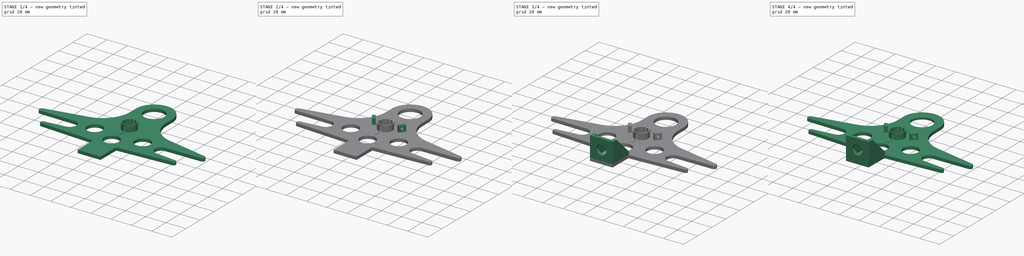
[diagram: build sequence overview — one tinted view per stage of 4, left to right]
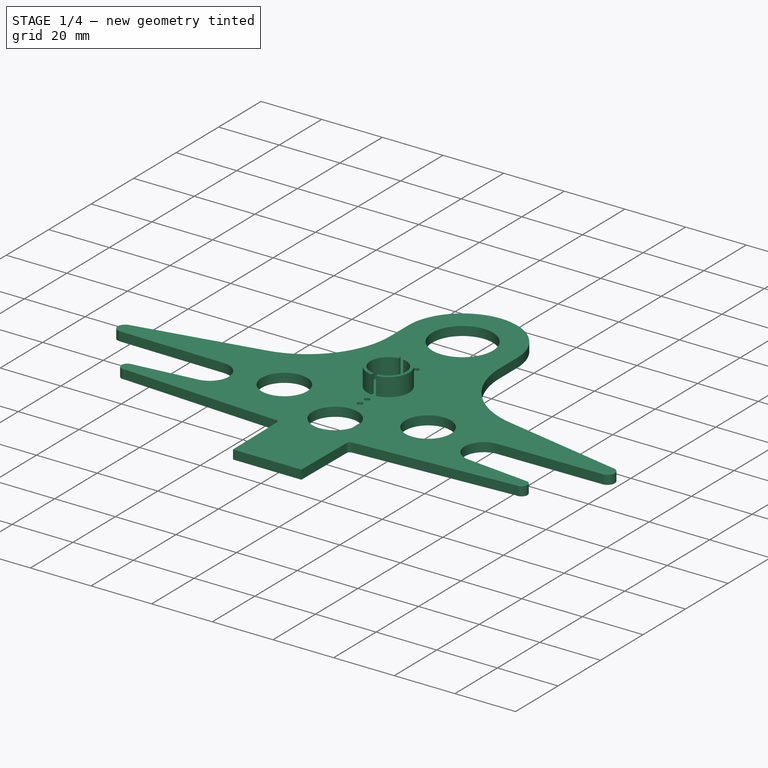
[diagram: stage 1 of 4 — iso view after this stage's code; geometry added in this stage tinted green]
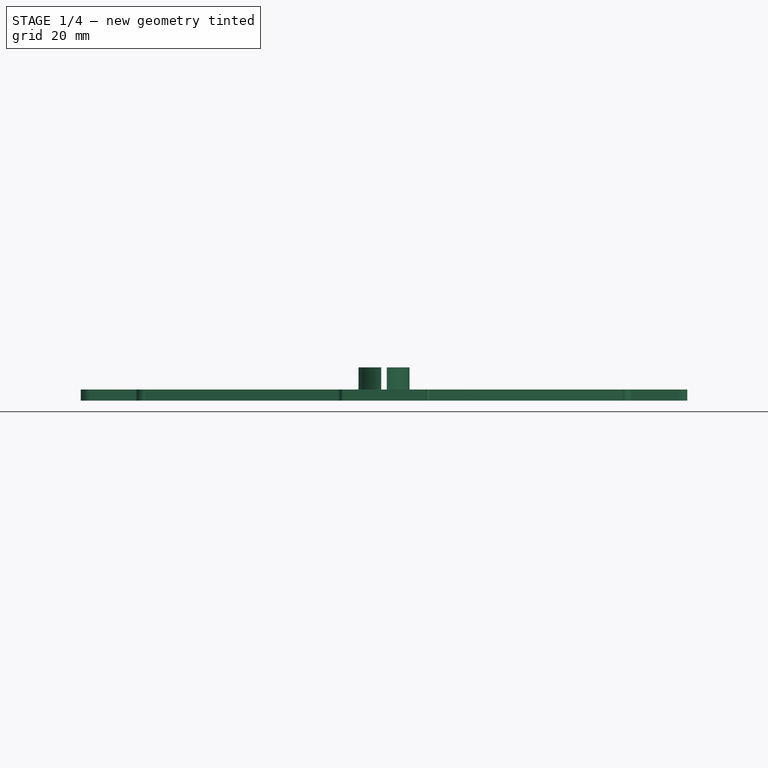
[diagram: stage 1 of 4 — front view after this stage's code; geometry added in this stage tinted green]
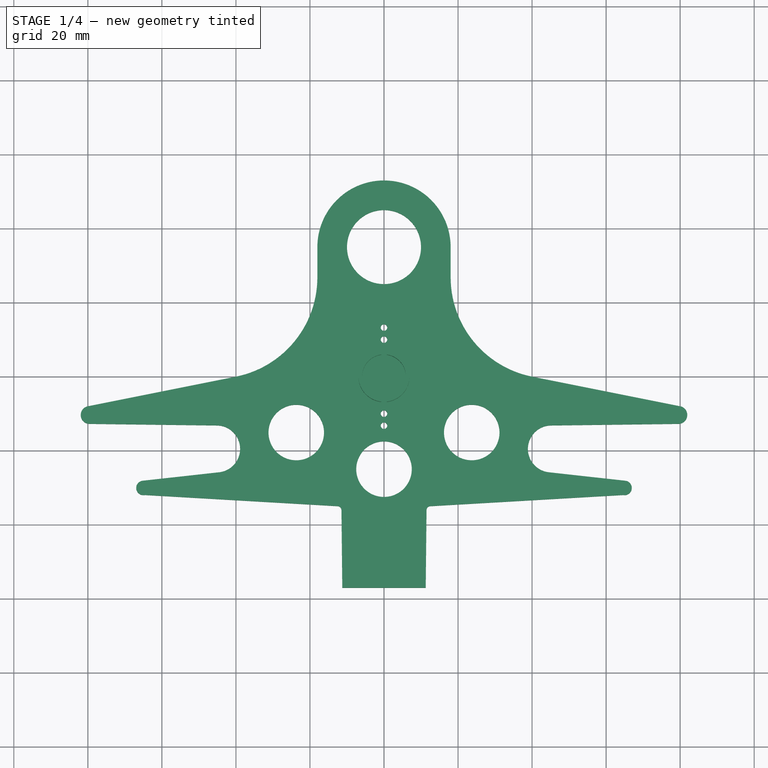
[diagram: stage 1 of 4 — top view after this stage's code; geometry added in this stage tinted green]
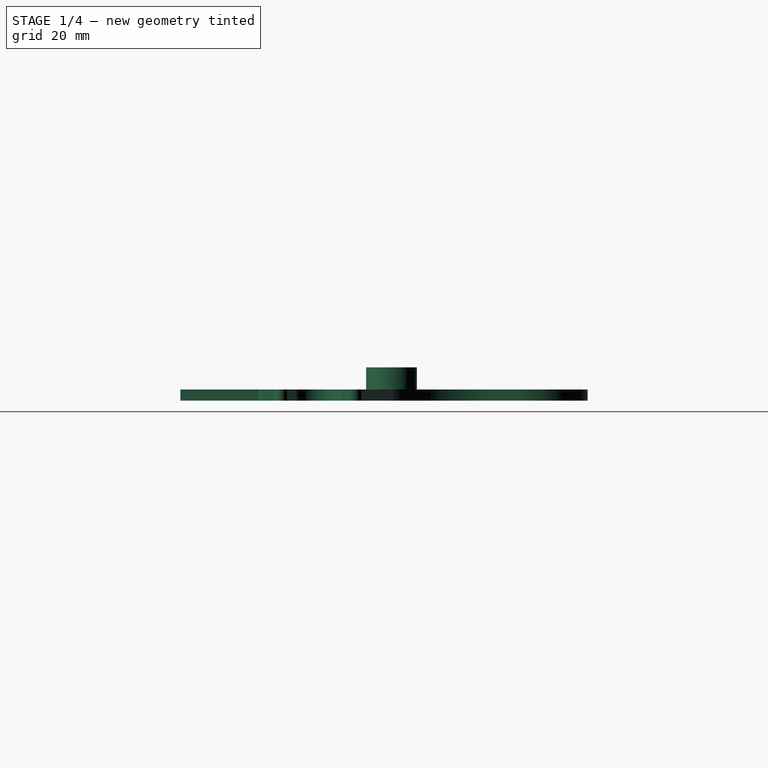
[diagram: stage 1 of 4 — right view after this stage's code; geometry added in this stage tinted green]
FCSTD DOCUMENT  (FreeCAD 1.0R39109 (Git))
Label: PortoAntenna
License: All rights reserved
LicenseURL: http://en.wikipedia.org/wiki/All_rights_reserved
objects: Sketcher::SketchObject×10, PartDesign::Pocket×6, PartDesign::Pad×4, PartDesign::Fillet×3, PartDesign::Chamfer×1, PartDesign::Body×1, App::Part×1
note: 63 computed .brp shape members not serialized (recipe doc carries the construction recipe); baked Part::Feature solids carry a one-line shape summary decoded from their .brp

FEATURE [Sketcher::SketchObject] Sketch001
  ArcFitTolerance = 0
  FullyConstrained = false
  MakeInternals = false
  sketch-geometry (32):
    g0: ArcOfCircle CenterX=0 CenterY=35 CenterZ=0 NormalX=0 NormalY=0 NormalZ=1 AngleXU=0 Radius=10 StartAngle=1.5708 EndAngle=4.71239
    g1: ArcOfCircle CenterX=0 CenterY=35 CenterZ=0 NormalX=0 NormalY=0 NormalZ=1 AngleXU=0 Radius=18 StartAngle=1.5708 EndAngle=3.14159
    g2: LineSegment StartX=-18 StartY=35 StartZ=0 EndX=-18 EndY=26.8357 EndZ=0
    g3: ArcOfCircle CenterX=-45.3671 CenterY=26.8357 CenterZ=0 NormalX=0 NormalY=0 NormalZ=1 AngleXU=0 Radius=27.3671 StartAngle=4.90978 EndAngle=6.28319
    g4: LineSegment StartX=-40 StartY=0 StartZ=0 EndX=-80 EndY=-8 EndZ=0
    g5: ArcOfCircle CenterX=-79.5303 CenterY=-10.3485 CenterZ=0 NormalX=0 NormalY=0 NormalZ=1 AngleXU=0 Radius=2.395 StartAngle=1.76819 EndAngle=4.6999
    g6: LineSegment StartX=-79.5602 StartY=-12.7433 StartZ=0 EndX=-45.1402 EndY=-13.1733 EndZ=0
    g7: ArcOfCircle CenterX=-45.2195 CenterY=-19.5228 CenterZ=0 NormalX=0 NormalY=0 NormalZ=1 AngleXU=0 Radius=6.35 StartAngle=4.81995 EndAngle=7.84149
    g8: LineSegment StartX=-44.5378 StartY=-25.8361 StartZ=0 EndX=-65.1978 EndY=-28.1261 EndZ=0
    g9: ArcOfCircle CenterX=-64.983 CenterY=-30.0642 CenterZ=0 NormalX=0 NormalY=0 NormalZ=1 AngleXU=0 Radius=1.95 StartAngle=1.68119 EndAngle=4.92581
    g10: LineSegment StartX=-64.57 StartY=-31.97 StartZ=0 EndX=-12.5 EndY=-34.99 EndZ=0
    g11: ArcOfCircle CenterX=-12.5621 CenterY=-36.0603 CenterZ=0 NormalX=0 NormalY=0 NormalZ=1 AngleXU=0 Radius=1.07214 StartAngle=0.0104803 EndAngle=1.51286
    g12: LineSegment StartX=-11.49 StartY=-36.0491 StartZ=0 EndX=-11.27 EndY=-57.04 EndZ=0
    g13: LineSegment StartX=-11.27 StartY=-57.04 StartZ=0 EndX=0 EndY=-57.04 EndZ=0
    g14: ArcOfCircle CenterX=0 CenterY=-25 CenterZ=0 NormalX=0 NormalY=0 NormalZ=1 AngleXU=0 Radius=7.5 StartAngle=1.5708 EndAngle=4.71239
    g15: Circle CenterX=-23.7 CenterY=-15.1 CenterZ=0 NormalX=0 NormalY=0 NormalZ=1 AngleXU=0 Radius=7.5
    g16: ArcOfCircle CenterX=0 CenterY=35 CenterZ=0 NormalX=0 NormalY=0 NormalZ=1 AngleXU=0 Radius=10 StartAngle=4.71239 EndAngle=7.85398
    g17: ArcOfCircle CenterX=0 CenterY=35 CenterZ=0 NormalX=0 NormalY=0 NormalZ=1 AngleXU=0 Radius=18 StartAngle=0 EndAngle=1.5708
    g18: LineSegment StartX=18 StartY=35 StartZ=0 EndX=18 EndY=26.8357 EndZ=0
    g19: ArcOfCircle CenterX=45.3671 CenterY=26.8357 CenterZ=0 NormalX=0 NormalY=0 NormalZ=1 AngleXU=0 Radius=27.3671 StartAngle=3.14159 EndAngle=4.51499
    g20: LineSegment StartX=40 StartY=3.6e-15 StartZ=0 EndX=80 EndY=-8 EndZ=0
    g21: ArcOfCircle CenterX=79.5303 CenterY=-10.3485 CenterZ=0 NormalX=0 NormalY=0 NormalZ=1 AngleXU=0 Radius=2.395 StartAngle=4.72488 EndAngle=7.65659
    g22: LineSegment StartX=79.5602 StartY=-12.7433 StartZ=0 EndX=45.1402 EndY=-13.1733 EndZ=0
    g23: ArcOfCircle CenterX=45.2195 CenterY=-19.5228 CenterZ=0 NormalX=0 NormalY=0 NormalZ=1 AngleXU=0 Radius=6.35 StartAngle=1.58329 EndAngle=4.60483
    g24: LineSegment StartX=44.5378 StartY=-25.8361 StartZ=0 EndX=65.1978 EndY=-28.1261 EndZ=0
    g25: ArcOfCircle CenterX=64.983 CenterY=-30.0642 CenterZ=0 NormalX=0 NormalY=0 NormalZ=1 AngleXU=0 Radius=1.95 StartAngle=4.49897 EndAngle=7.74359
    g26: LineSegment StartX=64.57 StartY=-31.97 StartZ=0 EndX=12.5 EndY=-34.99 EndZ=0
    g27: ArcOfCircle CenterX=12.5621 CenterY=-36.0603 CenterZ=0 NormalX=0 NormalY=0 NormalZ=1 AngleXU=0 Radius=1.07214 StartAngle=1.62873 EndAngle=3.13111
    g28: LineSegment StartX=11.49 StartY=-36.0491 StartZ=0 EndX=11.27 EndY=-57.04 EndZ=0
    g29: LineSegment StartX=11.27 StartY=-57.04 StartZ=0 EndX=0 EndY=-57.04 EndZ=0
    g30: ArcOfCircle CenterX=0 CenterY=-25 CenterZ=0 NormalX=0 NormalY=0 NormalZ=1 AngleXU=0 Radius=7.5 StartAngle=4.71239 EndAngle=7.85398
    g31: Circle CenterX=23.7 CenterY=-15.1 CenterZ=0 NormalX=0 NormalY=0 NormalZ=1 AngleXU=0 Radius=7.5
  constraints (71):
    c: PointOnObject(g0,g-2)
    c: PointOnObject(g0,g-2)
    c: PointOnObject(g0,g-2)
    c: Diameter(g0) = 20
    c: Coincident(g1,g0)
    c: PointOnObject(g1,g-2)
    c: Diameter(g1) = 36
    c: DistanceY(g-1,g0) = 35
    c: DistanceY(g-1,g1) = 35
    c: Tangent(g1,g2) = -1.5708
    c: Tangent(g2,g3) = 1.5708
    c: PointOnObject(g3,g-1)
    c: Tangent(g3,g4) = 1.5708
    c: DistanceX(g3,g-1) = 40
    c: DistanceX(g4,g-1) = 80
    c: DistanceY(g4,g-1) = 8
    c: Tangent(g4,g5) = -1.5708
    c: Tangent(g5,g6) = -1.5708
    c: Tangent(g6,g7) = 1.5708
    c: Coincident(g7,g8)
    c: Tangent(g8,g9) = -1.5708
    c: Coincident(g9,g10)
    c: DistanceX(g10,g-1) = 12.5
    c: Diameter(g5) = 4.79
    c: Diameter(g9) = 3.9
    c: DistanceX(g6,g6) = 34.42
    c: DistanceX(g10,g10) = 52.07
    c: DistanceY(g10,g10) = 3.02
    c: DistanceY(g6,g6) = 0.43
    c: DistanceY(g10,g-1) = 34.99
    c: Tangent(g10,g11) = 1.5708
    c: Tangent(g11,g12) = 1.5708
    c: Coincident(g12,g13)
    c: PointOnObject(g13,g-2)
    c: Horizontal(g13)
    c: DistanceX(g13,g13) = 11.27
    c: DistanceX(g12,g12) = 0.22
    c: DistanceY(g13,g-1) = 57.04
    c: Diameter(g7) = 12.7
    c: DistanceX(g8,g8) = 20.66
    c: DistanceY(g8,g8) = 2.29
    c: PointOnObject(g14,g-2)
    c: PointOnObject(g14,g-2)
    c: PointOnObject(g14,g-2)
    c: Diameter(g14) = 15
    c: Diameter(g15) = 15
    c: DistanceX(g15,g-1) = 23.7
    c: DistanceY(g14,g-1) = 25
    c: DistanceY(g15,g-1) = 15.1
    c: Diameter(g16) = 20
    c: Coincident(g17,g16)
    c: Diameter(g17) = 36
    c: Tangent(g17,g18) = 1.5708
    c: Tangent(g18,g19) = -1.5708
    c: Tangent(g19,g20) = -1.5708
    c: Tangent(g20,g21) = 1.5708
    c: Tangent(g21,g22) = 1.5708
    c: Tangent(g22,g23) = -1.5708
    c: Coincident(g23,g24)
    c: Tangent(g24,g25) = 1.5708
    c: Coincident(g25,g26)
    c: Diameter(g21) = 4.79
    c: Diameter(g25) = 3.9
    c: Tangent(g26,g27) = -1.5708
    c: Tangent(g27,g28) = -1.5708
    c: Coincident(g28,g29)
    c: Horizontal(g29)
    c: Diameter(g23) = 12.7
    c: Diameter(g30) = 15
    c: Diameter(g31) = 15
    c: Coincident(g14,g30)
FEATURE [PartDesign::Pad] Pad  label="PortoBodyPad"
  Direction = (0,0,1)
  Length = 3
  Length2 = 10
  Profile = -> Sketch001
  ReferenceAxis = -> Sketch001 [N_Axis]
  Suppressed = false
  Type = 0
FEATURE [Sketcher::SketchObject] Sketch
  ArcFitTolerance = 0
  AttachmentSupport = -> [Pad]
  FullyConstrained = true
  MakeInternals = false
  MapMode = 5
  Placement = pos=(0,0,3) rot=(0,0,1;0rad)
  sketch-geometry (2):
    g0: Circle CenterX=0 CenterY=0 CenterZ=0 NormalX=0 NormalY=0 NormalZ=1 AngleXU=0 Radius=5.9
    g1: Circle CenterX=0 CenterY=0 CenterZ=0 NormalX=0 NormalY=0 NormalZ=1 AngleXU=0 Radius=6.9
  constraints (4):
    c: Coincident(g0,g-1)
    c: Diameter(g0) = 11.8
    c: Coincident(g1,g0)
    c: Diameter(g1) = 13.8
FEATURE [PartDesign::Pad] Pad001  label="ToroidPad"
  BaseFeature = -> Pad
  Direction = (0,0,1)
  Length = 6
  Length2 = 10
  Profile = -> Sketch
  ReferenceAxis = -> Sketch [N_Axis]
  Suppressed = false
  Type = 0
FEATURE [Sketcher::SketchObject] Sketch002
  ArcFitTolerance = 0
  AttachmentSupport = -> [Pad001]
  FullyConstrained = false
  MakeInternals = false
  MapMode = 5
  Placement = pos=(0,0,9) rot=(0,0,1;0rad)
  sketch-geometry (4):
    g0: LineSegment StartX=-0.75 StartY=7.98442 StartZ=0 EndX=0.75 EndY=7.98442 EndZ=0
    g1: LineSegment StartX=0.75 StartY=7.98442 StartZ=0 EndX=0.75 EndY=-7.98442 EndZ=0
    g2: LineSegment StartX=0.75 StartY=-7.98442 StartZ=0 EndX=-0.75 EndY=-7.98442 EndZ=0
    g3: LineSegment StartX=-0.75 StartY=-7.98442 StartZ=0 EndX=-0.75 EndY=7.98442 EndZ=0
  constraints (10):
    c: Coincident(g0,g1)
    c: Coincident(g1,g2)
    c: Coincident(g2,g3)
    c: Coincident(g3,g0)
    c: Horizontal(g0)
    c: Horizontal(g2)
    c: Vertical(g1)
    c: Vertical(g3)
    c: DistanceX(g0,g0) = 1.5
    c: Symmetric(g0,g1,g-1)
FEATURE [PartDesign::Pocket] Pocket  label="ToroidPocket"
  BaseFeature = -> Pad001
  Direction = (0,0,-1)
  Length = 6
  Length2 = 5
  Profile = -> Sketch002
  ReferenceAxis = -> Sketch002 [N_Axis]
  Suppressed = false
  Type = 0
FEATURE [Sketcher::SketchObject] Sketch003
  ArcFitTolerance = 0
  AttachmentSupport = -> [Pocket]
  FullyConstrained = true
  MakeInternals = false
  MapMode = 5
  Placement = pos=(0,0,3) rot=(0,0,1;0rad)
  sketch-geometry (4):
    g0: Circle CenterX=0 CenterY=10 CenterZ=0 NormalX=0 NormalY=0 NormalZ=1 AngleXU=0 Radius=0.875
    g1: Circle CenterX=0 CenterY=13.25 CenterZ=0 NormalX=0 NormalY=0 NormalZ=1 AngleXU=0 Radius=0.875
    g2: Circle CenterX=0 CenterY=-10 CenterZ=0 NormalX=0 NormalY=0 NormalZ=1 AngleXU=0 Radius=0.875
    g3: Circle CenterX=0 CenterY=-13.25 CenterZ=0 NormalX=0 NormalY=0 NormalZ=1 AngleXU=0 Radius=0.875
  constraints (12):
    c: PointOnObject(g0,g-2)
    c: PointOnObject(g1,g-2)
    c: PointOnObject(g2,g-2)
    c: PointOnObject(g3,g-2)
    c: Equal(g0,g1)
    c: Equal(g0,g2)
    c: Equal(g0,g3)
    c: Diameter(g0) = 1.75
    c: DistanceY(g0,g1) = 3.25
    c: DistanceY(g3,g2) = 3.25
    c: DistanceY(g-1,g0) = 10
    c: DistanceY(g2,g-1) = 10
FEATURE [PartDesign::Pocket] Pocket001  label="ToroidWireHoles"
  BaseFeature = -> Pocket
  Direction = (0,0,-1)
  Length = 3
  Length2 = 5
  Profile = -> Sketch003
  ReferenceAxis = -> Sketch003 [N_Axis]
  Suppressed = false
  Type = 0
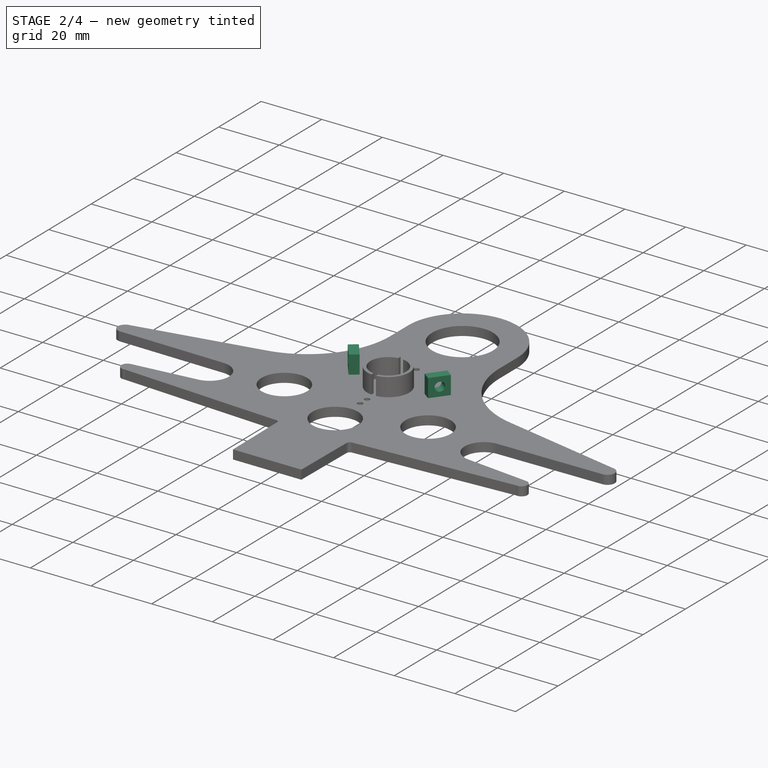
[diagram: stage 2 of 4 — iso view after this stage's code; geometry added in this stage tinted green]
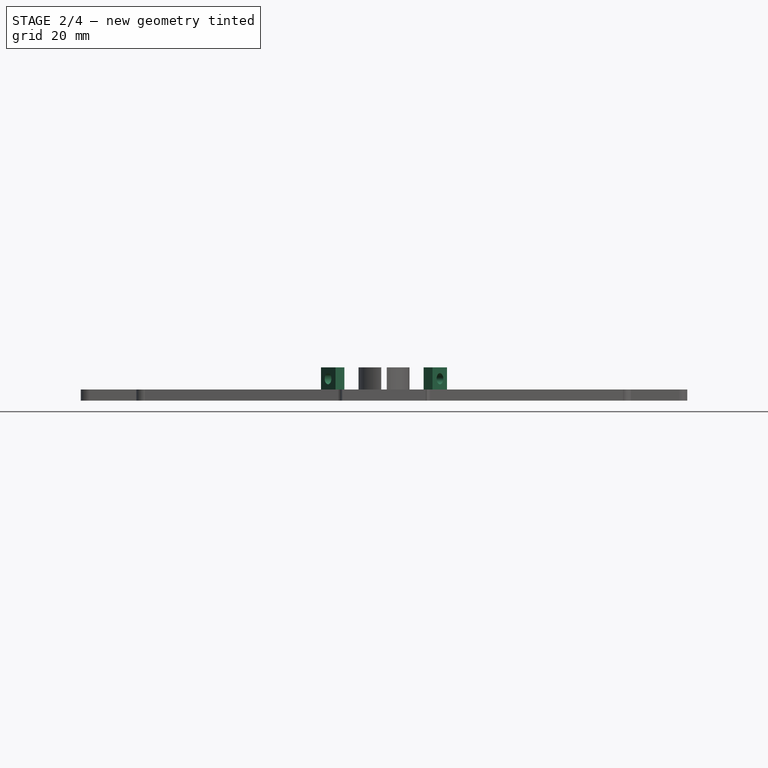
[diagram: stage 2 of 4 — front view after this stage's code; geometry added in this stage tinted green]
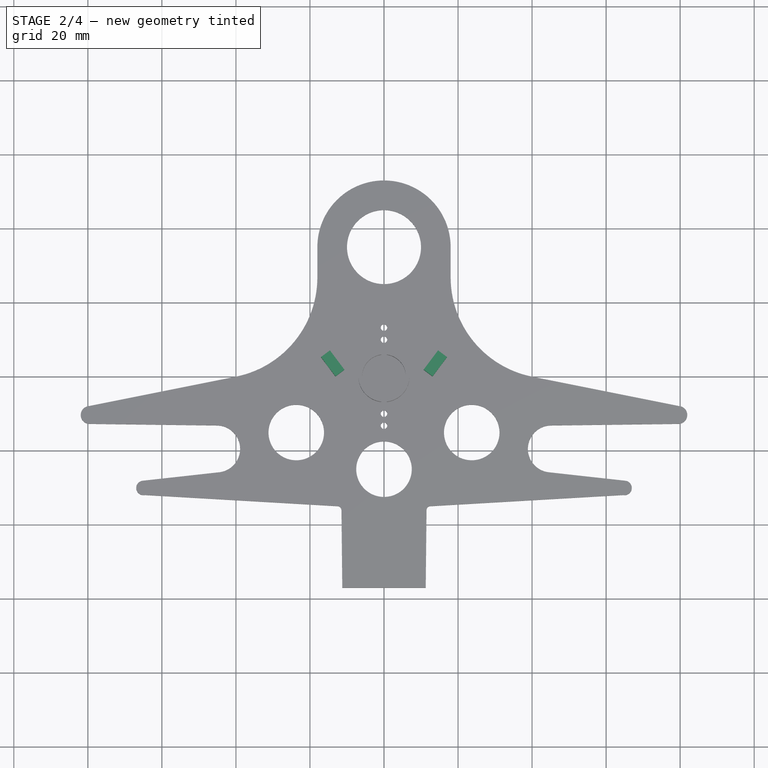
[diagram: stage 2 of 4 — top view after this stage's code; geometry added in this stage tinted green]
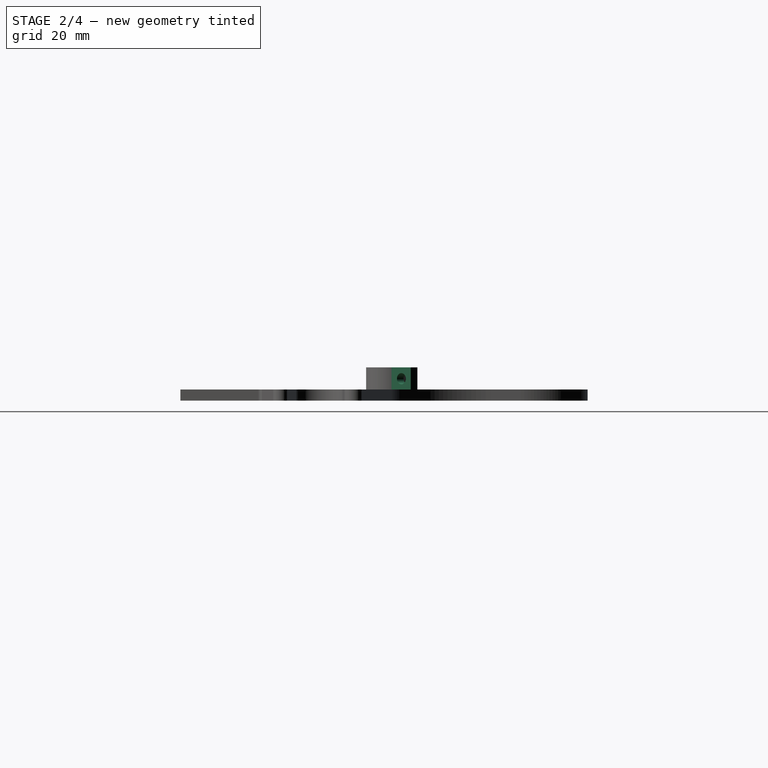
[diagram: stage 2 of 4 — right view after this stage's code; geometry added in this stage tinted green]
FEATURE [Sketcher::SketchObject] Sketch005
  ArcFitTolerance = 0
  FullyConstrained = true
  MakeInternals = false
  Placement = pos=(0,0,3) rot=(0,0,1;0rad)
  sketch-geometry (8):
    g0: LineSegment StartX=-13.11 StartY=0 StartZ=0 EndX=-17.01 EndY=5.2 EndZ=0
    g1: LineSegment StartX=-17.01 StartY=5.2 StartZ=0 EndX=-14.61 EndY=7 EndZ=0
    g2: LineSegment StartX=-14.61 StartY=7 StartZ=0 EndX=-10.71 EndY=1.8 EndZ=0
    g3: LineSegment StartX=-10.71 StartY=1.8 StartZ=0 EndX=-13.11 EndY=2e-16 EndZ=0
    g4: LineSegment StartX=13.11 StartY=-4e-16 StartZ=0 EndX=17.01 EndY=5.2 EndZ=0
    g5: LineSegment StartX=17.01 StartY=5.2 StartZ=0 EndX=14.61 EndY=7 EndZ=0
    g6: LineSegment StartX=14.61 StartY=7 StartZ=0 EndX=10.71 EndY=1.8 EndZ=0
    g7: LineSegment StartX=10.71 StartY=1.8 StartZ=0 EndX=13.11 EndY=-4e-16 EndZ=0
  constraints (20):
    c: PointOnObject(g0,g-1)
    c: Perpendicular(g0,g1) = 4.71239
    c: Perpendicular(g1,g2) = 4.71239
    c: Coincident(g2,g3)
    c: Coincident(g3,g0)
    c: Distance(g0) = 6.5
    c: Distance(g1) = 3
    c: Distance(g2) = 6.5
    c: DistanceX(g0,g-1) = 13.11
    c: DistanceY(g-1,g2) = 1.8
    c: Perpendicular(g4,g5) = 1.5708
    c: Perpendicular(g5,g6) = 1.5708
    c: Coincident(g6,g7)
    c: Coincident(g7,g4)
    c: Distance(g4) = 6.5
    c: Distance(g5) = 3
    c: Distance(g6) = 6.5
    c: DistanceX(g-1,g4) = 13.11
    c: DistanceY(g-1,g6) = 1.8
    c: DistanceX(g-1,g5) = 14.61
FEATURE [PartDesign::Pad] Pad002
  BaseFeature = -> Pocket001
  Direction = (0,0,1)
  Length = 6
  Length2 = 10
  Profile = -> Sketch005
  ReferenceAxis = -> Sketch005 [N_Axis]
  Suppressed = false
  Type = 0
FEATURE [Sketcher::SketchObject] Sketch006
  ArcFitTolerance = 0
  AttachmentSupport = -> [Pad002]
  FullyConstrained = true
  MakeInternals = false
  MapMode = 5
  Placement = pos=(8.3904,-6.2928,0) rot=(0.816497,0.408248,0.408248;1.77215rad)
  sketch-geometry (1):
    g0: Circle CenterX=11.21 CenterY=5.93 CenterZ=0 NormalX=0 NormalY=0 NormalZ=1 AngleXU=0 Radius=1.5
  constraints (3):
    c: Diameter(g0) = 3
    c: DistanceX(g-1,g0) = 11.21
    c: DistanceY(g-1,g0) = 5.93
FEATURE [PartDesign::Pocket] Pocket002
  BaseFeature = -> Pad002
  Direction = (-0.8,0.6,0)
  Length = 5
  Length2 = 5
  Profile = -> Sketch006
  ReferenceAxis = -> Sketch006 [N_Axis]
  Suppressed = false
  Type = 0
FEATURE [Sketcher::SketchObject] Sketch007
  ArcFitTolerance = 0
  AttachmentSupport = -> [Pocket002]
  FullyConstrained = true
  MakeInternals = false
  MapMode = 5
  Placement = pos=(-8.3904,-6.2928,0) rot=(0.816497,-0.408248,-0.408248;1.77215rad)
  sketch-geometry (1):
    g0: Circle CenterX=-11.21 CenterY=5.93 CenterZ=0 NormalX=0 NormalY=0 NormalZ=1 AngleXU=0 Radius=1.5
  constraints (3):
    c: Diameter(g0) = 3
    c: DistanceX(g0,g-1) = 11.21
    c: DistanceY(g-1,g0) = 5.93
FEATURE [PartDesign::Pocket] Pocket003
  BaseFeature = -> Pocket002
  Direction = (0.8,0.6,-1e-16)
  Length = 5
  Length2 = 5
  Profile = -> Sketch007
  ReferenceAxis = -> Sketch007 [N_Axis]
  Suppressed = false
  Type = 0
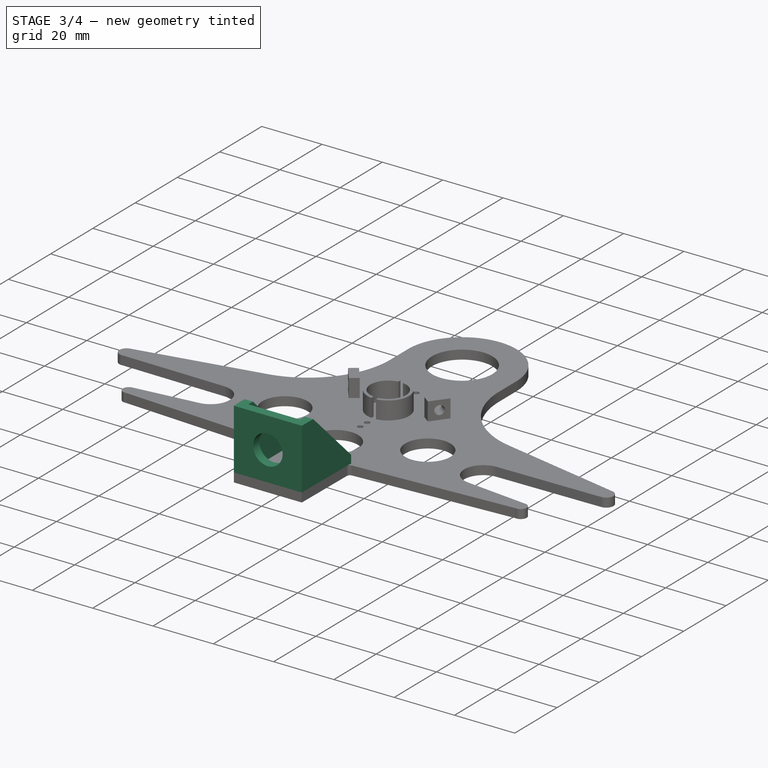
[diagram: stage 3 of 4 — iso view after this stage's code; geometry added in this stage tinted green]
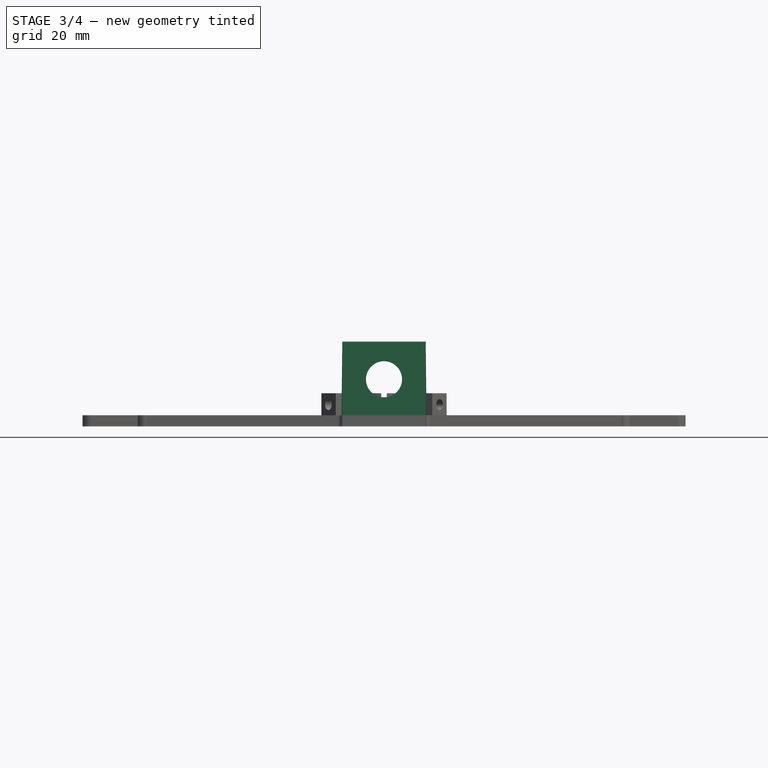
[diagram: stage 3 of 4 — front view after this stage's code; geometry added in this stage tinted green]
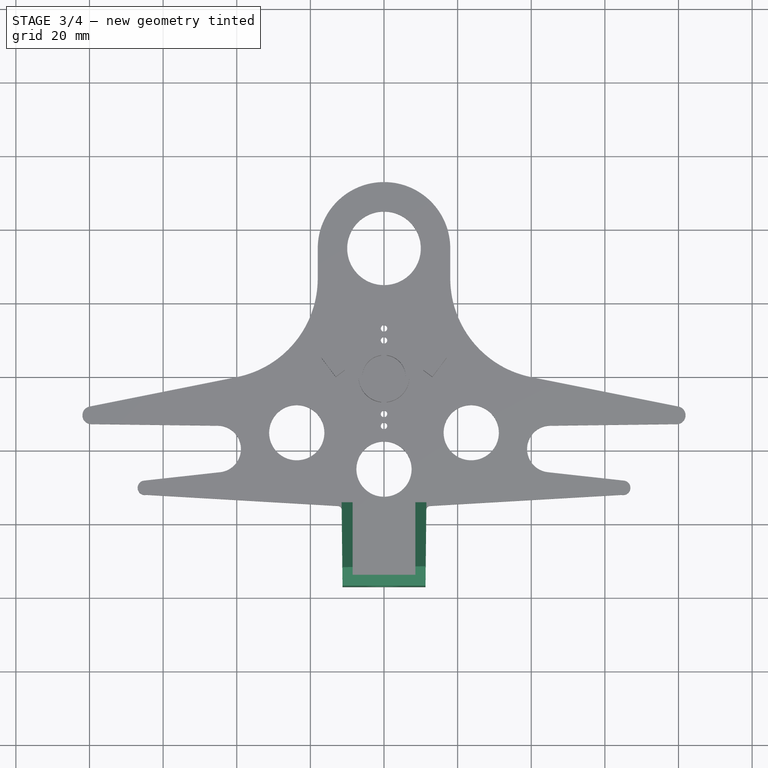
[diagram: stage 3 of 4 — top view after this stage's code; geometry added in this stage tinted green]
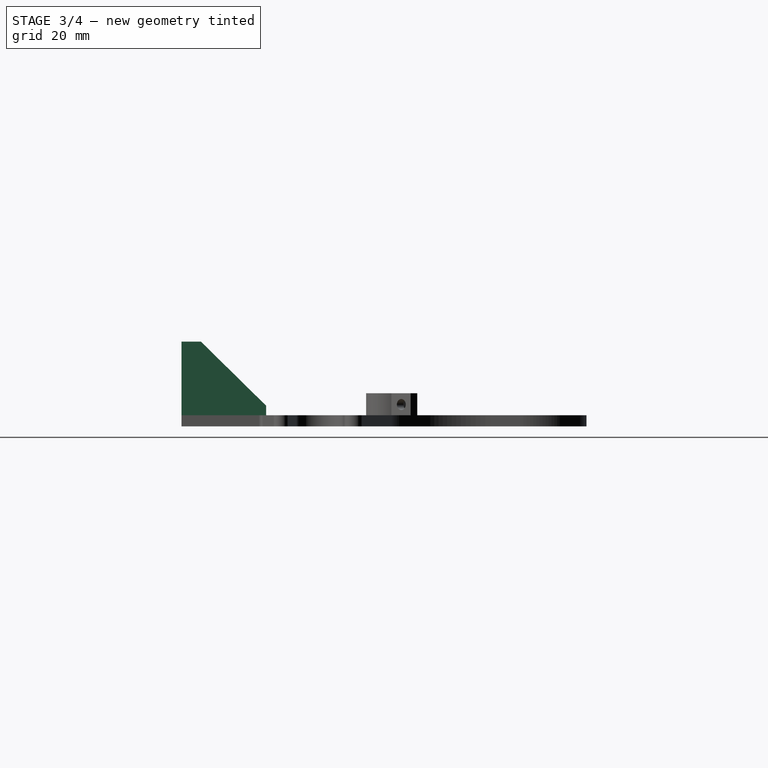
[diagram: stage 3 of 4 — right view after this stage's code; geometry added in this stage tinted green]
FEATURE [Sketcher::SketchObject] Sketch008
  ArcFitTolerance = 0
  AttachmentSupport = -> [Pocket003]
  FullyConstrained = true
  MakeInternals = false
  MapMode = 5
  Placement = pos=(0,0,3) rot=(0,0,1;0rad)
  sketch-geometry (8):
    g0: LineSegment StartX=-11.27 StartY=-57.04 StartZ=0 EndX=11.27 EndY=-57.04 EndZ=0
    g1: LineSegment StartX=11.27 StartY=-57.04 StartZ=0 EndX=11.51 EndY=-34.04 EndZ=0
    g2: LineSegment StartX=11.51 StartY=-34.04 StartZ=0 EndX=8.51 EndY=-34.04 EndZ=0
    g3: LineSegment StartX=8.51 StartY=-34.04 StartZ=0 EndX=8.51 EndY=-54.04 EndZ=0
    g4: LineSegment StartX=8.51 StartY=-54.04 StartZ=0 EndX=-8.51 EndY=-54.04 EndZ=0
    g5: LineSegment StartX=-8.51 StartY=-54.04 StartZ=0 EndX=-8.51 EndY=-34.04 EndZ=0
    g6: LineSegment StartX=-8.51 StartY=-34.04 StartZ=0 EndX=-11.51 EndY=-34.04 EndZ=0
    g7: LineSegment StartX=-11.51 StartY=-34.04 StartZ=0 EndX=-11.27 EndY=-57.04 EndZ=0
  constraints (24):
    c: Horizontal(g0)
    c: Coincident(g0,g1)
    c: Coincident(g1,g2)
    c: Coincident(g2,g3)
    c: Vertical(g3)
    c: Coincident(g3,g4)
    c: Horizontal(g4)
    c: Coincident(g4,g5)
    c: Vertical(g5)
    c: Coincident(g5,g6)
    c: Horizontal(g6)
    c: Coincident(g6,g7)
    c: Coincident(g7,g0)
    c: Horizontal(g2)
    c: Distance(g3) = 20
    c: DistanceY(g4,g5) = 20
    c: DistanceY(g0,g3) = 3
    c: DistanceX(g0,g0) = 22.54
    c: DistanceX(g0,g-1) = 11.27
    c: DistanceY(g0,g-1) = 57.04
    c: DistanceX(g6,g-1) = 11.51
    c: DistanceX(g-1,g1) = 11.51
    c: DistanceX(g2,g2) = 3
    c: DistanceX(g6,g6) = 3
FEATURE [PartDesign::Pad] Pad003  label="ConnPad"
  BaseFeature = -> Pocket003
  Direction = (0,0,1)
  Length = 20
  Length2 = 10
  Profile = -> Sketch008
  ReferenceAxis = -> Sketch008 [N_Axis]
  Suppressed = false
  Type = 0
FEATURE [Sketcher::SketchObject] Sketch009
  ArcFitTolerance = 0
  AttachmentSupport = -> [Pad003]
  FullyConstrained = true
  MakeInternals = false
  MapMode = 5
  Placement = pos=(-11.8639,-0.123797,0) rot=(0.581366,-0.575332,-0.575332;2.08838rad)
  sketch-geometry (3):
    g0: LineSegment StartX=33.76 StartY=5.21 StartZ=0 EndX=33.76 EndY=23.21 EndZ=0
    g1: LineSegment StartX=33.76 StartY=23.21 StartZ=0 EndX=52.07 EndY=23.21 EndZ=0
    g2: LineSegment StartX=52.07 StartY=23.21 StartZ=0 EndX=33.76 EndY=5.21 EndZ=0
  constraints (9):
    c: Vertical(g0)
    c: Coincident(g0,g1)
    c: Horizontal(g1)
    c: Coincident(g1,g2)
    c: Coincident(g2,g0)
    c: DistanceY(g0,g0) = 18
    c: DistanceY(g-1,g0) = 5.21
    c: DistanceX(g-1,g0) = 33.76
    c: DistanceX(g1,g1) = 18.31
FEATURE [PartDesign::Pocket] Pocket004  label="AnglePocket"
  BaseFeature = -> Pad003
  Direction = (0.999946,0.0104342,1e-16)
  Length = 5
  Length2 = 5
  Profile = -> Sketch009
  ReferenceAxis = -> Sketch009 [N_Axis]
  Suppressed = false
  Type = 1
FEATURE [Sketcher::SketchObject] Sketch010
  ArcFitTolerance = 0
  AttachmentSupport = -> [Pocket004]
  FullyConstrained = true
  MakeInternals = false
  MapMode = 5
  Placement = pos=(0,-54.04,0) rot=(0,0.707107,0.707107;3.14159rad)
  sketch-geometry (1):
    g0: Circle CenterX=0 CenterY=12.78 CenterZ=0 NormalX=0 NormalY=0 NormalZ=1 AngleXU=0 Radius=4.9
  constraints (3):
    c: PointOnObject(g0,g-2)
    c: Diameter(g0) = 9.8
    c: DistanceY(g-1,g0) = 12.78
FEATURE [PartDesign::Pocket] Pocket005
  BaseFeature = -> Pocket004
  Direction = (0,-1,2e-16)
  Length = 5
  Length2 = 5
  Profile = -> Sketch010
  ReferenceAxis = -> Sketch010 [N_Axis]
  Suppressed = false
  Type = 0
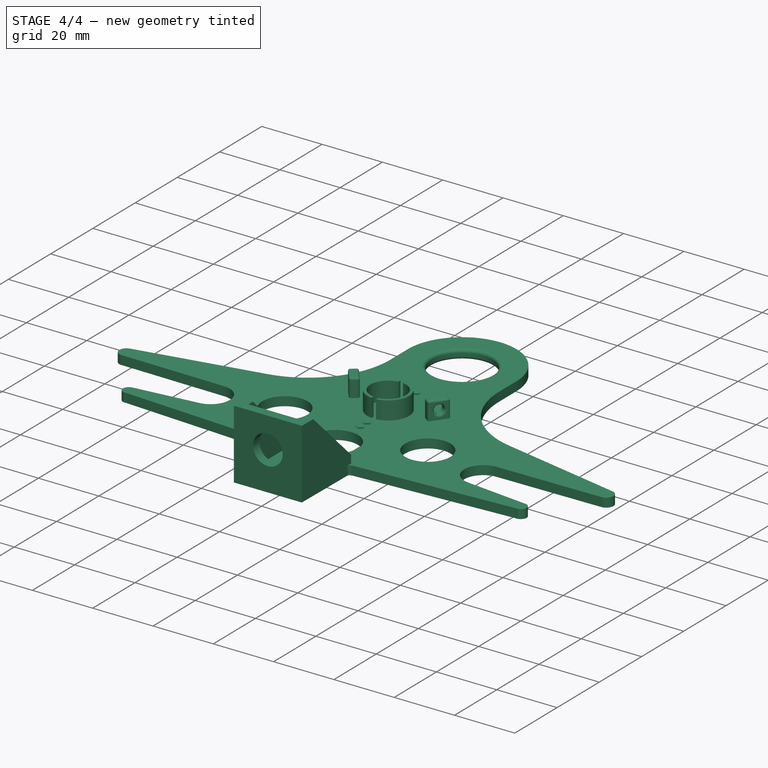
[diagram: stage 4 of 4 — iso view after this stage's code; geometry added in this stage tinted green]
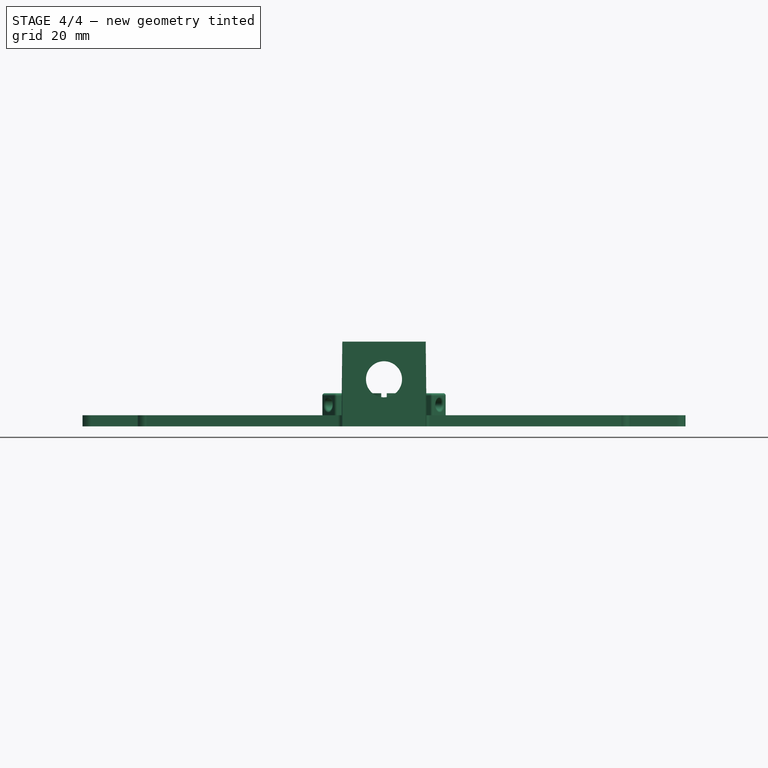
[diagram: stage 4 of 4 — front view after this stage's code; geometry added in this stage tinted green]
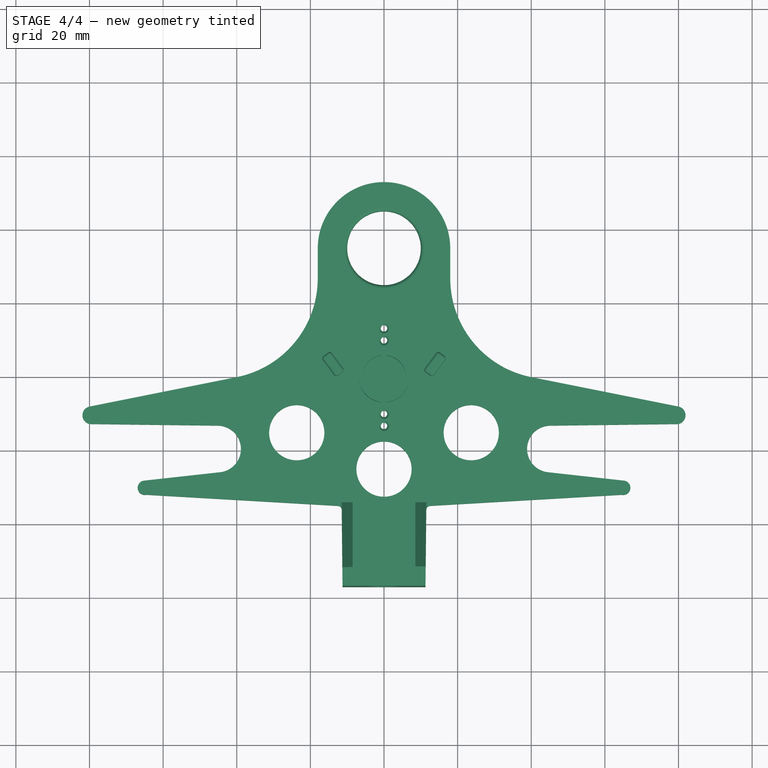
[diagram: stage 4 of 4 — top view after this stage's code; geometry added in this stage tinted green]
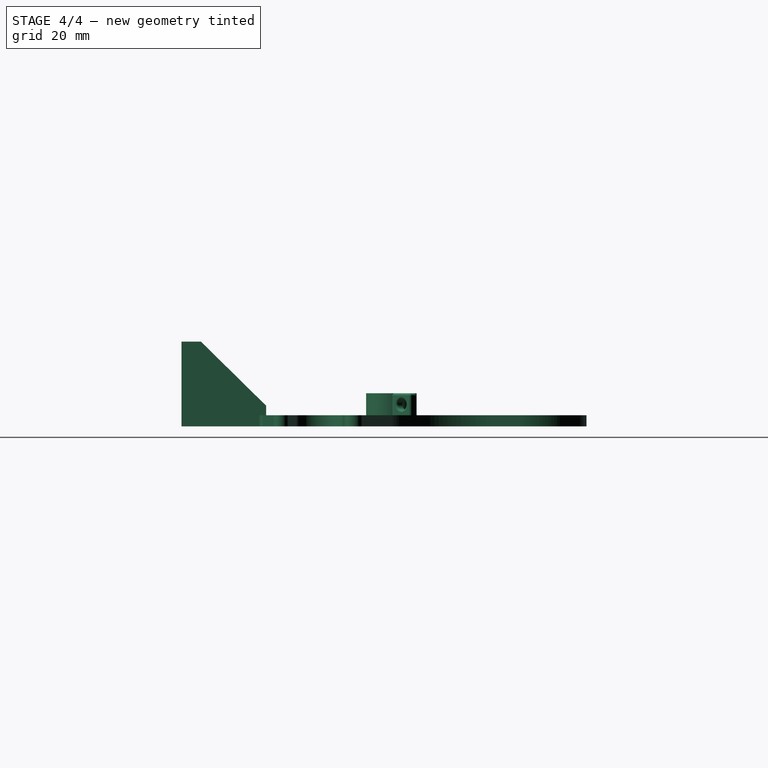
[diagram: stage 4 of 4 — right view after this stage's code; geometry added in this stage tinted green]
FEATURE [PartDesign::Fillet] Fillet
  Base = -> Pocket005 [Edge176,Edge158,Edge182,Edge161]
  BaseFeature = -> Pocket005
  Radius = 0.65
  SupportTransform = false
  Suppressed = false
  UseAllEdges = false
FEATURE [PartDesign::Fillet] Fillet001
  Base = -> Fillet [Edge170,Edge173,Edge168,Edge169,Edge171,Edge2,Edge8,Edge10,Edge67,Edge4,Edge68,Edge69,Edge166,Edge165,Edge5,Edge167]
  BaseFeature = -> Fillet
  Radius = 0.65
  SupportTransform = false
  Suppressed = false
  UseAllEdges = false
FEATURE [PartDesign::Chamfer] Chamfer
  Angle = 45
  Base = -> Fillet001 [Edge60,Edge59,Edge49,Edge47,Edge166,Edge170,Edge182,Edge184]
  BaseFeature = -> Fillet001
  ChamferType = 0
  FlipDirection = false
  Size = 0.5
  Size2 = 1
  SupportTransform = false
  Suppressed = false
  UseAllEdges = false
FEATURE [PartDesign::Fillet] Fillet002
  Base = -> Chamfer [Edge54,Edge55,Edge176,Edge177]
  BaseFeature = -> Chamfer
  Radius = 1
  SupportTransform = false
  Suppressed = false
  UseAllEdges = false
FEATURE [PartDesign::Body] Body  label="PortoBody"
  AllowCompound = false
  Group = -> [Sketch001,Pad,Sketch,Pad001,Sketch002,Pocket,Sketch003,Pocket001,Sketch005,Pad002,Sketch006,Pocket002,Sketch007,Pocket003,Sketch008,Pad003,Sketch009,Pocket004,Sketch010,Pocket005,Fillet,Fillet001,Chamfer,Fillet002]
  Origin = -> Origin001
  Tip = -> Fillet002
FEATURE [App::Part] Part  label="PortoPart"
  Group = -> [Body]
  Origin = -> Origin
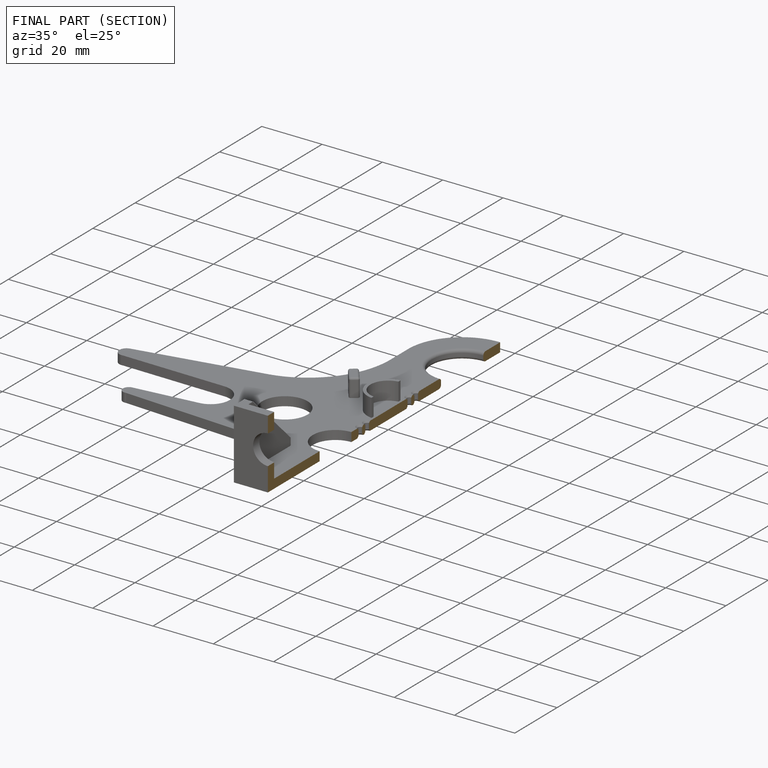
[diagram: finished part — half-section view (interior)]
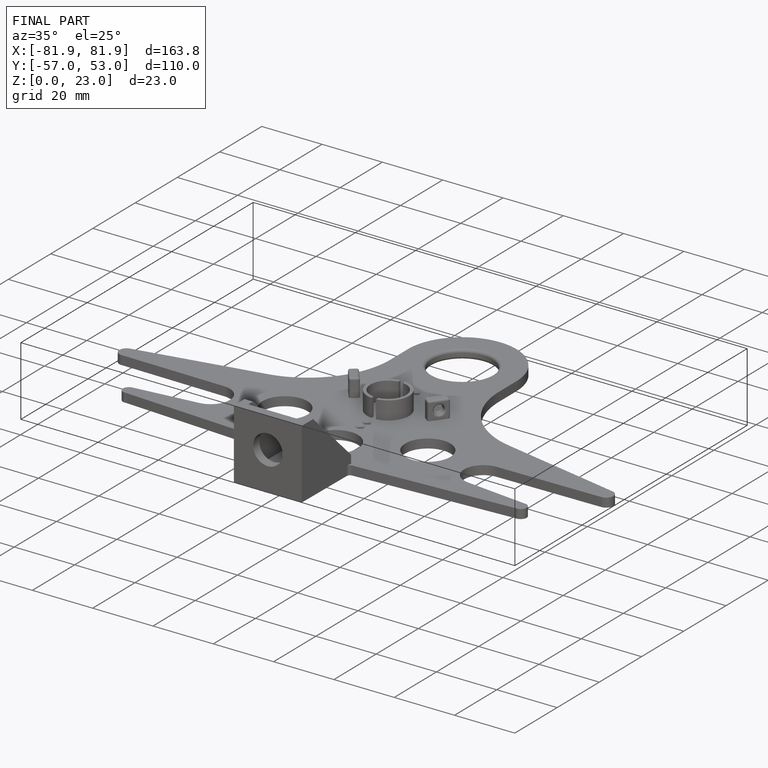
[diagram: finished part — iso view with bounding-box wireframe]
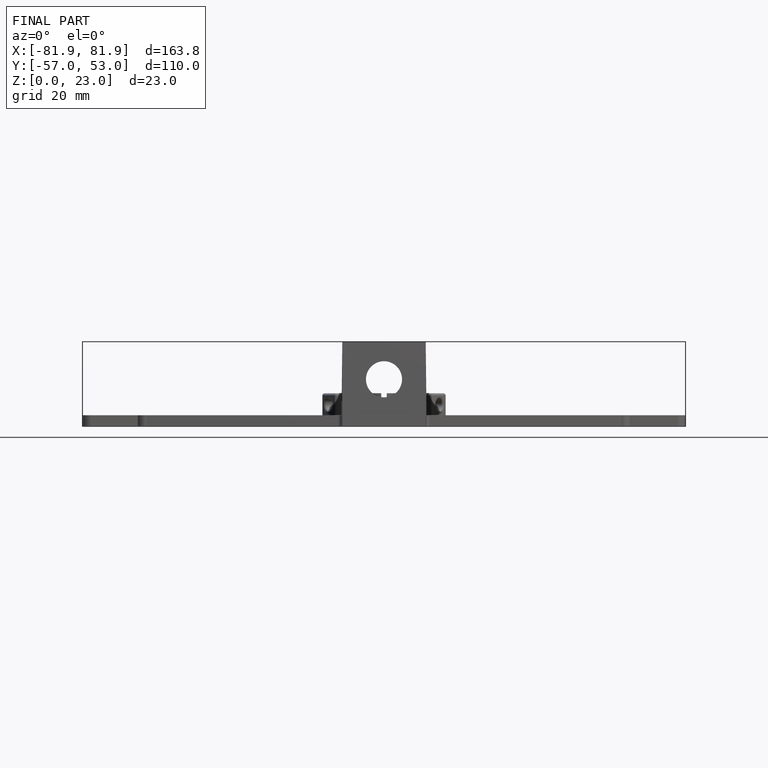
[diagram: finished part — front view with bounding-box wireframe]
